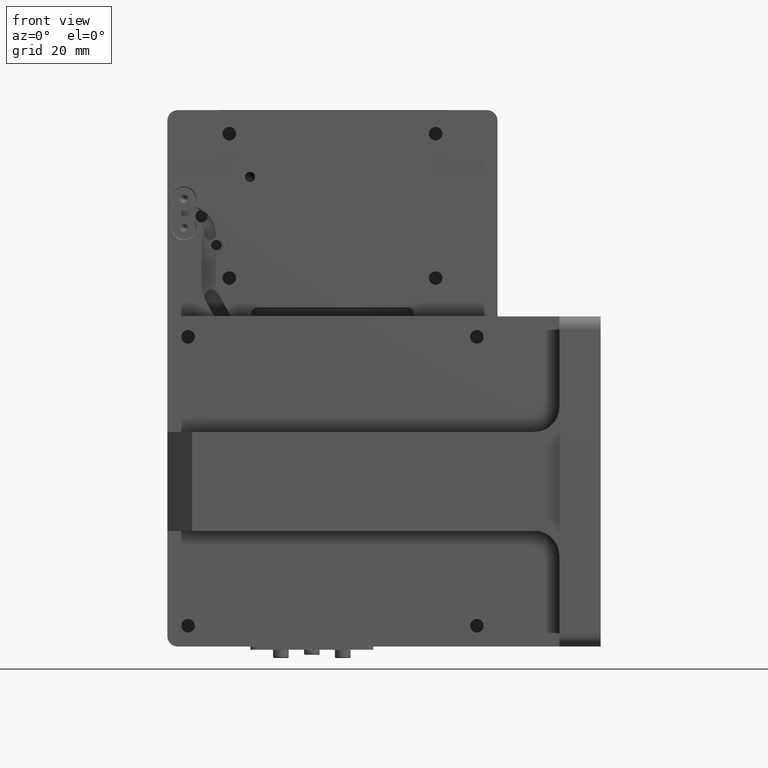
[diagram: clean part render]
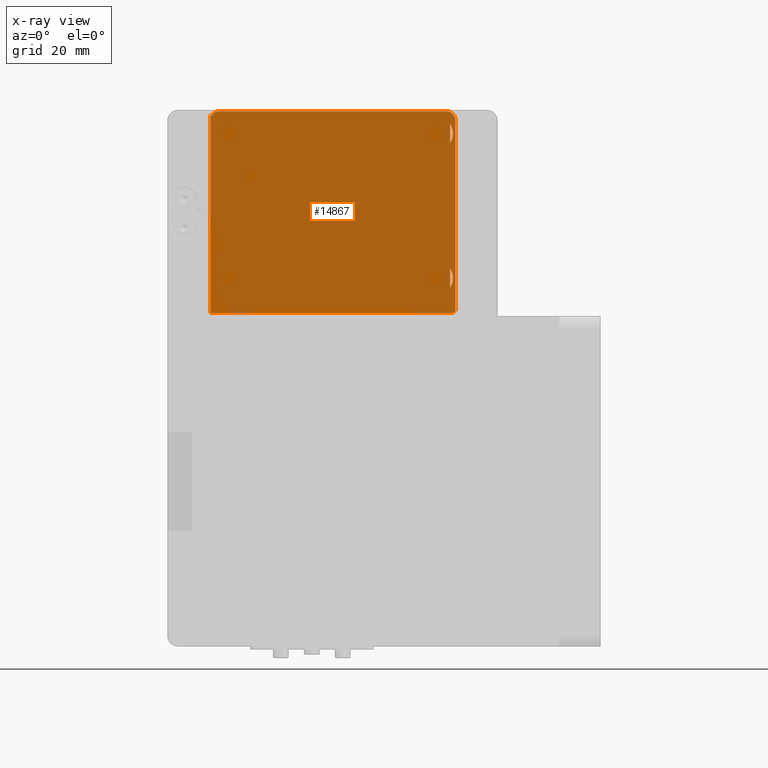
[diagram: x-ray — body ghosted, one internal face saturated and labeled with its STEP entity id]
A machine part, front view, then the same camera in x-ray: the body is ghosted and one INTERNAL B-rep face — a face not visible from any outside direction — is saturated and labeled: STEP entity #14867.
In plain terms, the highlighted planar face has unit normal (0, 1, 0).
Its self-contained STEP definition (entity closure, byte-faithful):
#698 = EDGE_LOOP ( 'NONE', ( #53043, #30802 ) ) ;
#958 = CARTESIAN_POINT ( 'NONE',  ( 0.09097680442681817248, 20.34986785792462882, 61.54261516356699957 ) ) ;
#1289 = LINE ( 'NONE', #49472, #37270 ) ;
#1690 = CIRCLE ( 'NONE', #42420, 4.150000000000001243 ) ;
#3575 = VERTEX_POINT ( 'NONE', #20963 ) ;
#3739 = CARTESIAN_POINT ( 'NONE',  ( 25.09097680442681977, 20.34986785792463237, 49.29261516356700668 ) ) ;
#4172 = CARTESIAN_POINT ( 'NONE',  ( 28.49360428887262842, 20.34986785792462882, 61.54261516356699957 ) ) ;
#5424 = FACE_BOUND ( 'NONE', #10035, .T. ) ;
#5821 = VECTOR ( 'NONE', #51684, 1000.000000000000000 ) ;
#7707 = CARTESIAN_POINT ( 'NONE',  ( 28.49360428887262842, 20.34986785792463237, 46.91677295456110386 ) ) ;
#8350 = LINE ( 'NONE', #13748, #36855 ) ;
#8633 = AXIS2_PLACEMENT_3D ( 'NONE', #63072, #10120, #44859 ) ;
#9323 = LINE ( 'NONE', #33518, #21664 ) ;
#10035 = EDGE_LOOP ( 'NONE', ( #59312, #33571 ) ) ;
#10120 = DIRECTION ( 'NONE',  ( -0.000000000000000000, 1.000000000000000000, -0.000000000000000000 ) ) ;
#10206 = ORIENTED_EDGE ( 'NONE', *, *, #54287, .T. ) ;
#10515 = EDGE_CURVE ( 'NONE', #38414, #22048, #62210, .T. ) ;
#10589 = VECTOR ( 'NONE', #23395, 1000.000000000000000 ) ;
#11954 = CARTESIAN_POINT ( 'NONE',  ( 29.09097680442681977, 20.34986785795873132, 41.54261516356699957 ) ) ;
#12782 = LINE ( 'NONE', #32213, #5821 ) ;
#13447 = ORIENTED_EDGE ( 'NONE', *, *, #50049, .T. ) ;
#13511 = CARTESIAN_POINT ( 'NONE',  ( 0.09097680442681817248, 20.34986785792462882, 89.74261516354812329 ) ) ;
#13748 = CARTESIAN_POINT ( 'NONE',  ( 0.09097680442681817248, 20.34986785791973674, 40.84261516356210819 ) ) ;
#13887 = ORIENTED_EDGE ( 'NONE', *, *, #24079, .T. ) ;
#14867 = ADVANCED_FACE ( 'NONE', ( #14985, #5424, #34419 ), #24850, .T. ) ;
#14985 = FACE_BOUND ( 'NONE', #698, .T. ) ;
#16115 = DIRECTION ( 'NONE',  ( -0.000000000000000000, 1.000000000000000000, -0.000000000000000000 ) ) ;
#16478 = VERTEX_POINT ( 'NONE', #40747 ) ;
#16681 = CIRCLE ( 'NONE', #57435, 0.6999999999948158802 ) ;
#17482 = CIRCLE ( 'NONE', #30662, 2.200000000016189006 ) ;
#17854 = CARTESIAN_POINT ( 'NONE',  ( 29.09097680442686595, 20.34986785793923403, 40.84261516358160549 ) ) ;
#17880 = DIRECTION ( 'NONE',  ( -0.000000000000000000, 0.000000000000000000, -1.000000000000000000 ) ) ;
#18069 = DIRECTION ( 'NONE',  ( 0.000000000000000000, 0.000000000000000000, -1.000000000000000000 ) ) ;
#19773 = CARTESIAN_POINT ( 'NONE',  ( 28.49360428887262842, 20.34986785792462882, 86.66845737257288818 ) ) ;
#20084 = DIRECTION ( 'NONE',  ( -0.000000000000000000, 1.000000000000000000, 0.000000000000000000 ) ) ;
#20335 = DIRECTION ( 'NONE',  ( -0.000000000000000000, 0.000000000000000000, -1.000000000000000000 ) ) ;
#20963 = CARTESIAN_POINT ( 'NONE',  ( 27.59097680442681622, 20.34986785797692121, 89.74261516356565949 ) ) ;
#21126 = EDGE_CURVE ( 'NONE', #57294, #42564, #24051, .T. ) ;
#21664 = VECTOR ( 'NONE', #23342, 1000.000000000000000 ) ;
#21888 = DIRECTION ( 'NONE',  ( 1.577021341785492677E-15, 0.000000000000000000, -1.000000000000000000 ) ) ;
#22048 = VERTEX_POINT ( 'NONE', #24740 ) ;
#22447 = LINE ( 'NONE', #13511, #10589 ) ;
#22953 = ORIENTED_EDGE ( 'NONE', *, *, #29305, .T. ) ;
#23342 = DIRECTION ( 'NONE',  ( 1.000000000000000000, 0.000000000000000000, 0.000000000000000000 ) ) ;
#23395 = DIRECTION ( 'NONE',  ( 1.000000000000000000, 0.000000000000000000, 0.000000000000000000 ) ) ;
#24051 = LINE ( 'NONE', #33282, #55496 ) ;
#24079 = EDGE_CURVE ( 'NONE', #27167, #40022, #17482, .T. ) ;
#24620 = EDGE_LOOP ( 'NONE', ( #25231, #22953, #41351, #10206, #55560, #13447, #13887, #29866, #44818 ) ) ;
#24740 = CARTESIAN_POINT ( 'NONE',  ( 28.49360428887262842, 20.34986785792463237, 51.66845737257288818 ) ) ;
#24850 = PLANE ( 'NONE',  #51936 ) ;
#25231 = ORIENTED_EDGE ( 'NONE', *, *, #47470, .T. ) ;
#27167 = VERTEX_POINT ( 'NONE', #55305 ) ;
#29305 = EDGE_CURVE ( 'NONE', #44882, #40493, #16681, .T. ) ;
#29384 = EDGE_CURVE ( 'NONE', #40022, #3575, #22447, .T. ) ;
#29866 = ORIENTED_EDGE ( 'NONE', *, *, #29384, .T. ) ;
#29915 = CARTESIAN_POINT ( 'NONE',  ( 29.79097680439578255, 20.34986785795240394, 87.54261516356702089 ) ) ;
#30203 = VECTOR ( 'NONE', #20335, 1000.000000000000000 ) ;
#30488 = VERTEX_POINT ( 'NONE', #46657 ) ;
#30662 = AXIS2_PLACEMENT_3D ( 'NONE', #51225, #36858, #21888 ) ;
#30802 = ORIENTED_EDGE ( 'NONE', *, *, #42709, .T. ) ;
#32213 = CARTESIAN_POINT ( 'NONE',  ( 29.79097680441378060, 20.34986785792462882, 61.54261516356699957 ) ) ;
#33028 = DIRECTION ( 'NONE',  ( 0.000000000000000000, -1.000000000000000000, 0.000000000000000000 ) ) ;
#33282 = CARTESIAN_POINT ( 'NONE',  ( -29.61612997675972991, 20.34986785792462882, 61.54261516356699957 ) ) ;
#33518 = CARTESIAN_POINT ( 'NONE',  ( 0.09097680442681817248, 20.34986785792462882, 88.59758536733592393 ) ) ;
#33571 = ORIENTED_EDGE ( 'NONE', *, *, #47618, .T. ) ;
#34058 = CIRCLE ( 'NONE', #8633, 2.200000000005739142 ) ;
#34419 = FACE_OUTER_BOUND ( 'NONE', #24620, .T. ) ;
#34975 = LINE ( 'NONE', #59565, #30203 ) ;
#36303 = CARTESIAN_POINT ( 'NONE',  ( -29.61612997675973347, 20.34986785792462882, 88.59758536733592393 ) ) ;
#36708 = CARTESIAN_POINT ( 'NONE',  ( 29.79097680378333735, 20.34986785859310743, 41.54261516160700296 ) ) ;
#36855 = VECTOR ( 'NONE', #57135, 1000.000000000000000 ) ;
#36858 = DIRECTION ( 'NONE',  ( -0.000000000000000000, 1.000000000000000000, -0.000000000000000000 ) ) ;
#37220 = EDGE_CURVE ( 'NONE', #3575, #59045, #34058, .T. ) ;
#37270 = VECTOR ( 'NONE', #44377, 1000.000000000000000 ) ;
#38414 = VERTEX_POINT ( 'NONE', #7707 ) ;
#40022 = VERTEX_POINT ( 'NONE', #58582 ) ;
#40493 = VERTEX_POINT ( 'NONE', #17854 ) ;
#40747 = CARTESIAN_POINT ( 'NONE',  ( 28.49360428887262842, 20.34986785792462882, 81.91677295456111096 ) ) ;
#41351 = ORIENTED_EDGE ( 'NONE', *, *, #48660, .F. ) ;
#42420 = AXIS2_PLACEMENT_3D ( 'NONE', #47757, #33028, #18069 ) ;
#42564 = VERTEX_POINT ( 'NONE', #36303 ) ;
#42709 = EDGE_CURVE ( 'NONE', #61975, #16478, #34975, .T. ) ;
#42864 = DIRECTION ( 'NONE',  ( 0.000000000000000000, -0.000000000000000000, 1.000000000000000000 ) ) ;
#44145 = EDGE_CURVE ( 'NONE', #16478, #61975, #1690, .T. ) ;
#44377 = DIRECTION ( 'NONE',  ( -1.000000000000000000, -0.000000000000000000, -0.000000000000000000 ) ) ;
#44818 = ORIENTED_EDGE ( 'NONE', *, *, #37220, .T. ) ;
#44859 = DIRECTION ( 'NONE',  ( 0.000000000000000000, 0.000000000000000000, -1.000000000000000000 ) ) ;
#44882 = VERTEX_POINT ( 'NONE', #36708 ) ;
#45542 = VECTOR ( 'NONE', #17880, 1000.000000000000000 ) ;
#46657 = CARTESIAN_POINT ( 'NONE',  ( 28.49360428887263552, 20.34778632990794733, 40.83845210753730726 ) ) ;
#46788 = DIRECTION ( 'NONE',  ( 0.000000000000000000, -1.000000000000000000, 0.000000000000000000 ) ) ;
#47470 = EDGE_CURVE ( 'NONE', #59045, #44882, #12782, .T. ) ;
#47618 = EDGE_CURVE ( 'NONE', #22048, #38414, #62512, .T. ) ;
#47757 = CARTESIAN_POINT ( 'NONE',  ( 25.09097680442681977, 20.34986785792462882, 84.29261516356700668 ) ) ;
#48660 = EDGE_CURVE ( 'NONE', #30488, #40493, #8350, .T. ) ;
#49472 = CARTESIAN_POINT ( 'NONE',  ( 0.09097680442681817248, 20.34986785792462882, 40.83550838238045344 ) ) ;
#50049 = EDGE_CURVE ( 'NONE', #42564, #27167, #9323, .T. ) ;
#50074 = CARTESIAN_POINT ( 'NONE',  ( -29.61612997675973347, 20.34986785792462882, 40.83550838238045344 ) ) ;
#50224 = DIRECTION ( 'NONE',  ( -1.932977587531329092E-13, 0.000000000000000000, -1.000000000000000000 ) ) ;
#51225 = CARTESIAN_POINT ( 'NONE',  ( -27.40902319557318023, 20.34986785790962927, 87.54261516356700668 ) ) ;
#51226 = DIRECTION ( 'NONE',  ( 0.000000000000000000, 0.000000000000000000, -1.000000000000000000 ) ) ;
#51684 = DIRECTION ( 'NONE',  ( -0.000000000000000000, 0.000000000000000000, -1.000000000000000000 ) ) ;
#51936 = AXIS2_PLACEMENT_3D ( 'NONE', #958, #20084, #53892 ) ;
#53043 = ORIENTED_EDGE ( 'NONE', *, *, #44145, .T. ) ;
#53892 = DIRECTION ( 'NONE',  ( 0.000000000000000000, -0.000000000000000000, 1.000000000000000000 ) ) ;
#54287 = EDGE_CURVE ( 'NONE', #30488, #57294, #1289, .T. ) ;
#55305 = CARTESIAN_POINT ( 'NONE',  ( -29.33957696825532580, 20.34986785791275565, 88.59758536733592393 ) ) ;
#55496 = VECTOR ( 'NONE', #42864, 1000.000000000000000 ) ;
#55560 = ORIENTED_EDGE ( 'NONE', *, *, #21126, .T. ) ;
#57111 = AXIS2_PLACEMENT_3D ( 'NONE', #3739, #46788, #51226 ) ;
#57135 = DIRECTION ( 'NONE',  ( 1.000000000000000000, -0.000000000000000000, 0.000000000000000000 ) ) ;
#57294 = VERTEX_POINT ( 'NONE', #50074 ) ;
#57435 = AXIS2_PLACEMENT_3D ( 'NONE', #11954, #16115, #50224 ) ;
#58582 = CARTESIAN_POINT ( 'NONE',  ( -27.40902319557320510, 20.34986785791948805, 89.74261516356743584 ) ) ;
#59045 = VERTEX_POINT ( 'NONE', #29915 ) ;
#59312 = ORIENTED_EDGE ( 'NONE', *, *, #10515, .T. ) ;
#59565 = CARTESIAN_POINT ( 'NONE',  ( 28.49360428887262842, 20.34986785792462882, 61.54261516356699957 ) ) ;
#61975 = VERTEX_POINT ( 'NONE', #19773 ) ;
#62210 = CIRCLE ( 'NONE', #57111, 4.150000000000001243 ) ;
#62512 = LINE ( 'NONE', #4172, #45542 ) ;
#63072 = CARTESIAN_POINT ( 'NONE',  ( 27.59097680442681977, 20.34986785797692121, 87.54261516356700668 ) ) ;